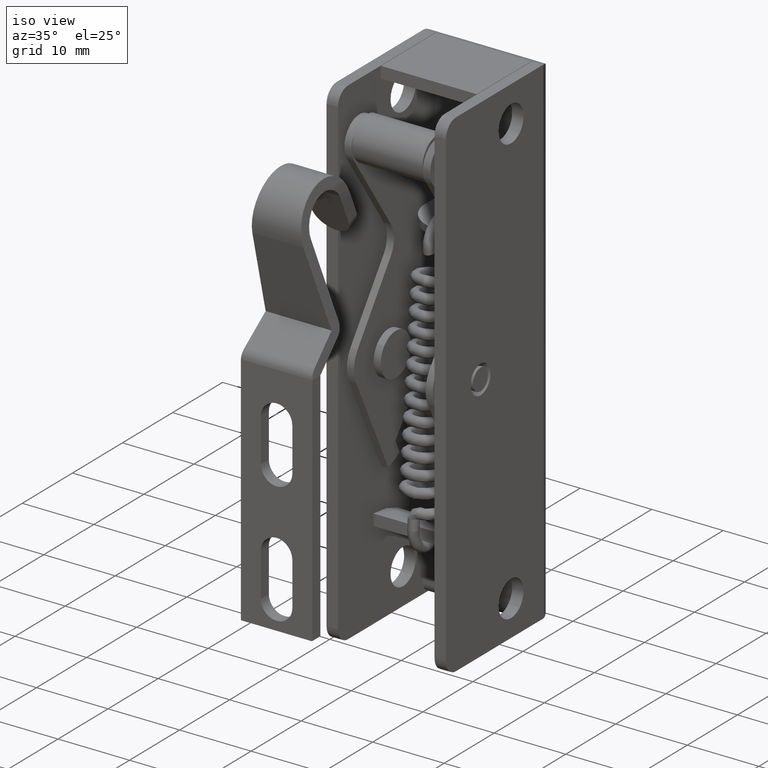
[diagram: clean part render]
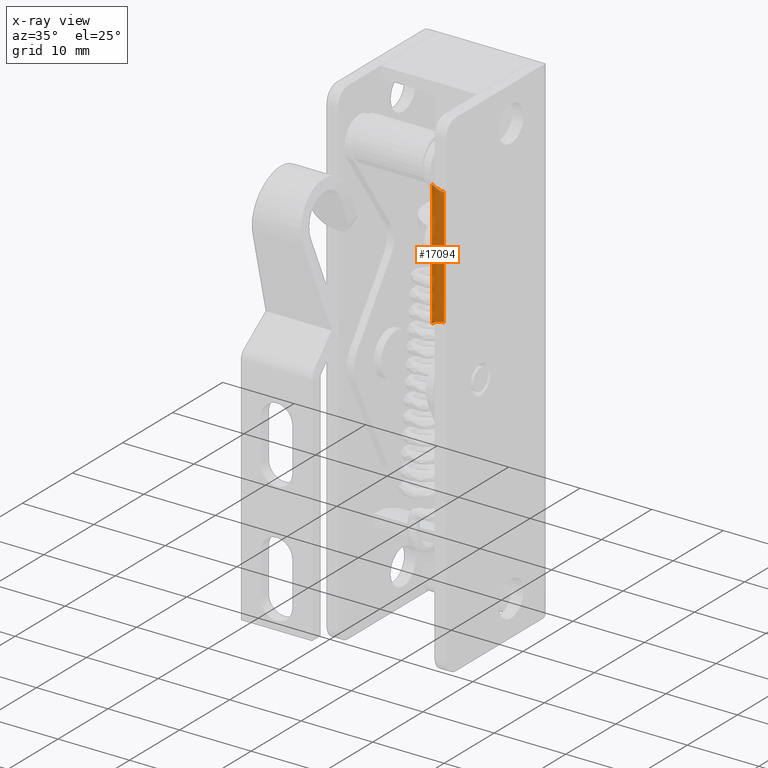
[diagram: x-ray — body ghosted, one internal face saturated and labeled with its STEP entity id]
A machine part, iso view, then the same camera in x-ray: the body is ghosted and one INTERNAL B-rep face — a face not visible from any outside direction — is saturated and labeled: STEP entity #17094.
In plain terms, the highlighted face is a freeform B-spline surface patch.
Its self-contained STEP definition (entity closure, byte-faithful):
#16780=CARTESIAN_POINT('',(-5.0,5.700009000000000,-14.899997003890901));
#16781=VERTEX_POINT('',#16780);
#17028=CARTESIAN_POINT('',(-5.999961923064171,4.691282464501627,-31.339830276654610));
#17029=CARTESIAN_POINT('',(-5.999961923064171,4.691282464501627,-12.855962900244849));
#17030=CARTESIAN_POINT('',(-6.009319986679547,5.763610342011752,-31.339830276654606));
#17031=CARTESIAN_POINT('',(-6.009319986679547,5.763610342011752,-12.855962900244849));
#17032=CARTESIAN_POINT('',(-4.938951460465143,5.698143798421866,-31.339830276654610));
#17033=CARTESIAN_POINT('',(-4.938951460465143,5.698143798421866,-12.855962900244849));
#17041=(BOUNDED_SURFACE()B_SPLINE_SURFACE(1,2,((#17028,#17030,#17032),(#17029,#17031,#17033)),.UNSPECIFIED.,.F.,.F.,.U.)B_SPLINE_SURFACE_WITH_KNOTS((2,2),(3,3),(0.0,18.483867376409759),(0.0,1.0),.UNSPECIFIED.)GEOMETRIC_REPRESENTATION_ITEM()RATIONAL_B_SPLINE_SURFACE(((1.0,0.681998360062499,1.0),(1.0,0.681998360062499,1.0)))REPRESENTATION_ITEM('')SURFACE());
#17042=CARTESIAN_POINT('',(-6.0,4.700009000000000,-30.899999999999999));
#17043=VERTEX_POINT('',#17042);
#17044=CARTESIAN_POINT('',(-5.0,5.700009000000000,-30.899999999999999));
#17045=VERTEX_POINT('',#17044);
#17046=CARTESIAN_POINT('',(-6.0,4.700009000000000,-30.899999999999999));
#17047=CARTESIAN_POINT('',(-6.000109706845977,4.822739938164791,-30.900000000000009));
#17048=CARTESIAN_POINT('',(-5.958807045630789,5.043569469553270,-30.899999999999991));
#17049=CARTESIAN_POINT('',(-5.816129239725602,5.295412060574594,-30.900000000000059));
#17050=CARTESIAN_POINT('',(-5.651710665161471,5.468053287123524,-30.899999999999910));
#17051=CARTESIAN_POINT('',(-5.468467563247559,5.593798625534941,-30.900000000000080));
#17052=CARTESIAN_POINT('',(-5.245430826445837,5.679821974917410,-30.899999999999959));
#17053=CARTESIAN_POINT('',(-5.081812550435633,5.700026773182974,-30.900000000000009));
#17054=CARTESIAN_POINT('',(-5.0,5.700009000000000,-30.899999999999999));
#17055=B_SPLINE_CURVE_WITH_KNOTS('',3,(#17046,#17047,#17048,#17049,#17050,#17051,#17052,#17053,#17054),.UNSPECIFIED.,.F.,.U.,(4,1,1,1,1,1,4),(0.000000166063702,0.368165092204813,0.662717393512166,0.859041864871537,1.079943376003138,1.325396588270872,1.570835744356546),.UNSPECIFIED.);
#17056=EDGE_CURVE('',#17043,#17045,#17055,.T.);
#17057=ORIENTED_EDGE('',*,*,#17056,.F.);
#17058=CARTESIAN_POINT('',(-6.0,4.700009000000000,-13.306788933815820));
#17059=VERTEX_POINT('',#17058);
#17060=CARTESIAN_POINT('',(-6.0,4.700009000000000,-13.306788933815820));
#17061=CARTESIAN_POINT('',(-6.0,4.700009000000000,-30.899999999999999));
#17062=QUASI_UNIFORM_CURVE('',1,(#17060,#17061),.UNSPECIFIED.,.F.,.U.);
#17063=EDGE_CURVE('',#17059,#17043,#17062,.T.);
#17064=ORIENTED_EDGE('',*,*,#17063,.F.);
#17065=CARTESIAN_POINT('',(-5.0,5.700009000000000,-14.400000000000000));
#17066=VERTEX_POINT('',#17065);
#17067=CARTESIAN_POINT('',(-5.0,5.700009000000000,-14.400000000000000));
#17068=CARTESIAN_POINT('',(-5.414213497420437,5.700009038048383,-14.400000041594922));
#17069=CARTESIAN_POINT('',(-5.707106748710219,5.407115813662875,-14.079805927486319));
#17070=CARTESIAN_POINT('',(-6.000000000000001,5.114222589277366,-13.759611813377727));
#17071=CARTESIAN_POINT('',(-6.0,4.700009000000000,-13.306788933815840));
#17079=(BOUNDED_CURVE()B_SPLINE_CURVE(2,(#17067,#17068,#17069,#17070,#17071),.UNSPECIFIED.,.F.,.U.)B_SPLINE_CURVE_WITH_KNOTS((3,2,3),(0.0,0.500000000000000,1.0),.UNSPECIFIED.)CURVE()GEOMETRIC_REPRESENTATION_ITEM()RATIONAL_B_SPLINE_CURVE((1.0,0.923879523723254,1.0,0.923879523723254,1.0))REPRESENTATION_ITEM(''));
#17080=EDGE_CURVE('',#17066,#17059,#17079,.T.);
#17081=ORIENTED_EDGE('',*,*,#17080,.F.);
#17082=CARTESIAN_POINT('',(-5.0,5.700009000000000,-14.899997003890901));
#17083=CARTESIAN_POINT('',(-5.0,5.700009000000000,-14.400000000000000));
#17084=QUASI_UNIFORM_CURVE('',1,(#17082,#17083),.UNSPECIFIED.,.F.,.U.);
#17085=EDGE_CURVE('',#16781,#17066,#17084,.T.);
#17086=ORIENTED_EDGE('',*,*,#17085,.F.);
#17087=CARTESIAN_POINT('',(-5.0,5.700009000000000,-30.899999999999999));
#17088=CARTESIAN_POINT('',(-5.0,5.700009000000000,-14.899997003890901));
#17089=QUASI_UNIFORM_CURVE('',1,(#17087,#17088),.UNSPECIFIED.,.F.,.U.);
#17090=EDGE_CURVE('',#17045,#16781,#17089,.T.);
#17091=ORIENTED_EDGE('',*,*,#17090,.F.);
#17092=EDGE_LOOP('',(#17057,#17064,#17081,#17086,#17091));
#17093=FACE_OUTER_BOUND('',#17092,.T.);
#17094=ADVANCED_FACE('',(#17093),#17041,.T.);